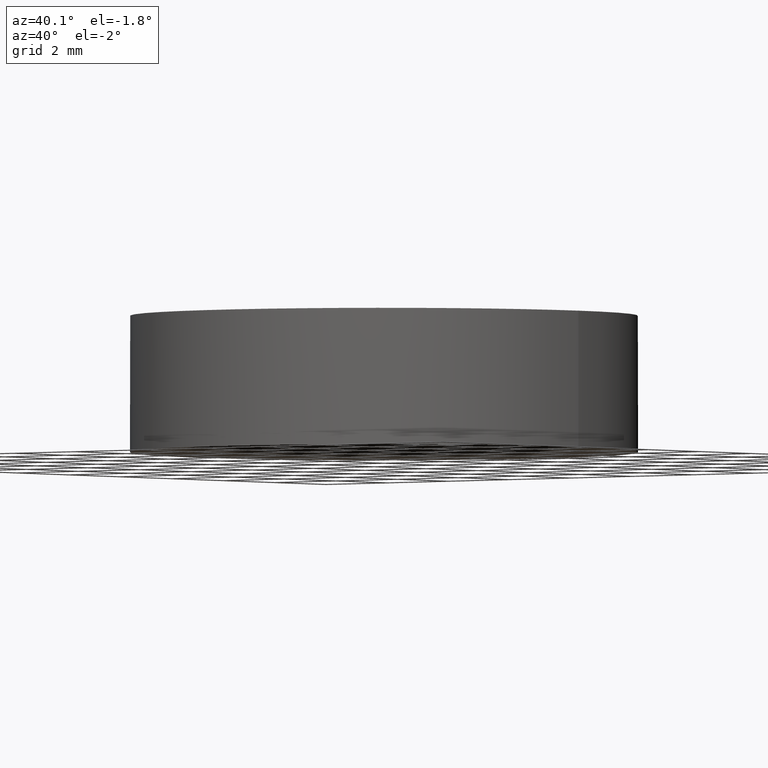
[diagram: clean part render]
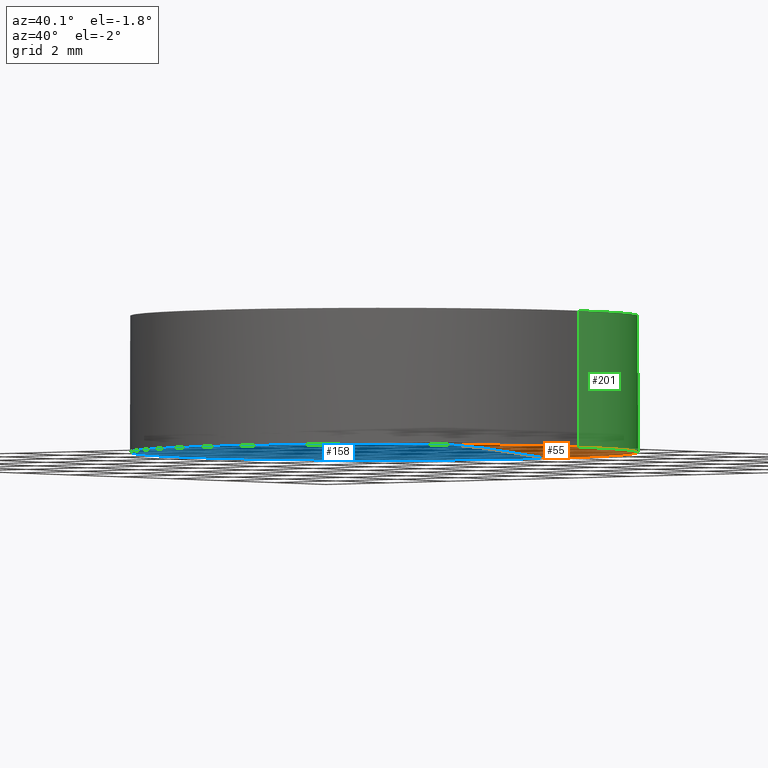
[diagram: same view with three faces highlighted in distinct colors, each labeled with its STEP entity id]
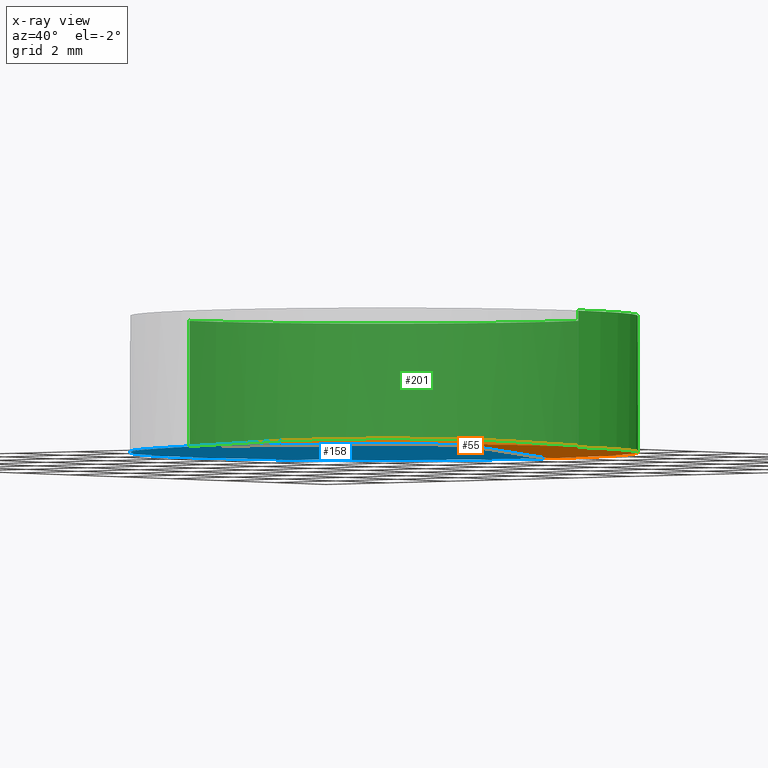
[diagram: x-ray of the same camera — body ghosted, the three highlighted faces saturated]
A machine part, auxiliary view with three faces highlighted in distinct colors.
The next image is the same camera in x-ray (body ghosted, the three faces saturated) — at least one of them is partly hidden behind the body in this view.
Their STEP definitions:

[orange] entity #55 — the highlighted face is a freeform B-spline surface patch.
#6 = CARTESIAN_POINT ( 'NONE',  ( 2.498001805406600200E-016, 1.221245327087670000E-015, -0.3116876092362069800 ) ) ;
#7 = DIRECTION ( 'NONE',  ( 0.0000000000000000000, 0.0000000000000000000, 1.000000000000000000 ) ) ;
#8 = CARTESIAN_POINT ( 'NONE',  ( 0.0000000000000000000, 0.0000000000000000000, -64.84000000000000300 ) ) ;
#16 = CARTESIAN_POINT ( 'NONE',  ( -1.391880571784052100E-014, 6.349999999999981000, -0.3116876092362075300 ) ) ;
#19 = DIRECTION ( 'NONE',  ( 1.000000000000000000, 0.0000000000000000000, 0.0000000000000000000 ) ) ;
#20 = CARTESIAN_POINT ( 'NONE',  ( 6.349999999999999600, 1.221245327087670000E-015, -0.3116876092362069800 ) ) ;
#23 = CARTESIAN_POINT ( 'NONE',  ( -1.105452618250814200E-014, -6.425951033630023600, -0.3192068142882365000 ) ) ;
#24 = DIRECTION ( 'NONE',  ( 1.000000000000000000, 0.0000000000000000000, 0.0000000000000000000 ) ) ;
#25 = DIRECTION ( 'NONE',  ( 1.000000000000000000, 2.240790868895130200E-016, 1.936499352473490000E-016 ) ) ;
#26 = CARTESIAN_POINT ( 'NONE',  ( 4.271726891306651700, -2.149036805498218100, 0.001348661855880839600 ) ) ;
#36 = EDGE_CURVE ( 'NONE', #98, #202, #53, .T. ) ;
#41 = CARTESIAN_POINT ( 'NONE',  ( 6.398493793489575600, 2.149036805498215900, -0.2092027377904508200 ) ) ;
#42 = CARTESIAN_POINT ( 'NONE',  ( -1.305848864697712000E-014, 2.149036805498214100, 0.1067526330159033200 ) ) ;
#47 = EDGE_LOOP ( 'NONE', ( #57, #153, #147 ) ) ;
#53 = CIRCLE ( 'NONE', #81, 6.349999999999999600 ) ;
#54 = CARTESIAN_POINT ( 'NONE',  ( 2.123147063980211200, 6.425951033630018300, -0.3192068142882361100 ) ) ;
#55 = ADVANCED_FACE ( 'NONE', ( #101 ), #195, .F. ) ;
#57 = ORIENTED_EDGE ( 'NONE', *, *, #154, .F. ) ;
#58 = CARTESIAN_POINT ( 'NONE',  ( 4.243710364661558800, -6.425951033630021800, -0.4239194834896737300 ) ) ;
#71 = CARTESIAN_POINT ( 'NONE',  ( -1.393436866253321800E-014, 6.425951033630018300, -0.3192068142882365000 ) ) ;
#81 = AXIS2_PLACEMENT_3D ( 'NONE', #6, #87, #19 ) ;
#87 = DIRECTION ( 'NONE',  ( 0.0000000000000000000, 0.0000000000000000000, 1.000000000000000000 ) ) ;
#90 = CARTESIAN_POINT ( 'NONE',  ( 2.123147063980214400, -6.425951033630021800, -0.3192068142882361100 ) ) ;
#93 = CIRCLE ( 'NONE', #143, 64.84000000000000300 ) ;
#98 = VERTEX_POINT ( 'NONE', #20 ) ;
#101 = FACE_OUTER_BOUND ( 'NONE', #47, .T. ) ;
#110 = CARTESIAN_POINT ( 'NONE',  ( 4.243710364661555300, 6.425951033630018300, -0.4239194834896737300 ) ) ;
#124 = CARTESIAN_POINT ( 'NONE',  ( 6.356528664066487100, 6.425951033630020100, -0.6330899617783315400 ) ) ;
#143 = AXIS2_PLACEMENT_3D ( 'NONE', #8, #25, #187 ) ;
#145 = CARTESIAN_POINT ( 'NONE',  ( 6.398493793489576500, -2.149036805498217600, -0.2092027377904504500 ) ) ;
#147 = ORIENTED_EDGE ( 'NONE', *, *, #157, .F. ) ;
#153 = ORIENTED_EDGE ( 'NONE', *, *, #36, .F. ) ;
#154 = EDGE_CURVE ( 'NONE', #202, #182, #93, .T. ) ;
#157 = EDGE_CURVE ( 'NONE', #182, #98, #222, .T. ) ;
#160 = CARTESIAN_POINT ( 'NONE',  ( 2.498001805406600200E-016, 1.221245327087670000E-015, -0.3116876092362069800 ) ) ;
#165 = CARTESIAN_POINT ( 'NONE',  ( -1.209538023684112500E-014, -2.149036805498219400, 0.1067526330159036900 ) ) ;
#166 = CARTESIAN_POINT ( 'NONE',  ( 2.137163856168667700, 2.149036805498215400, 0.1067526330159037200 ) ) ;
#167 = AXIS2_PLACEMENT_3D ( 'NONE', #160, #7, #24 ) ;
#182 = VERTEX_POINT ( 'NONE', #214 ) ;
#184 = CARTESIAN_POINT ( 'NONE',  ( 4.271726891306650800, 2.149036805498215400, 0.001348661855880487500 ) ) ;
#187 = DIRECTION ( 'NONE',  ( -2.240790868895131200E-016, 1.000000000000000000, 4.280625480510319500E-016 ) ) ;
#195 =( BOUNDED_SURFACE ( )  B_SPLINE_SURFACE ( 3, 3, ( 
 ( #71, #54, #110, #124 ),
 ( #42, #166, #184, #41 ),
 ( #165, #206, #26, #145 ),
 ( #23, #90, #58, #209 ) ),
 .UNSPECIFIED., .F., .F., .F. ) 
 B_SPLINE_SURFACE_WITH_KNOTS ( ( 4, 4 ),
 ( 4, 4 ),
 ( 0.0000000000000000000, 1.000000000000000000 ),
 ( 0.0000000000000000000, 1.000000000000000000 ),
 .UNSPECIFIED. ) 
 GEOMETRIC_REPRESENTATION_ITEM ( )  RATIONAL_B_SPLINE_SURFACE ( (
 ( 1.000000000000000000, 0.9991887001634776100, 0.9991887001634776100, 1.000000000000000000),
 ( 0.9967180051995863100, 0.9959093680449089300, 0.9959093680449089300, 0.9967180051995863100),
 ( 0.9967180051995863100, 0.9959093680449089300, 0.9959093680449089300, 0.9967180051995863100),
 ( 1.000000000000000000, 0.9991887001634776100, 0.9991887001634776100, 1.000000000000000000) ) ) 
 REPRESENTATION_ITEM ( '' )  SURFACE ( )  );
#202 = VERTEX_POINT ( 'NONE', #16 ) ;
#206 = CARTESIAN_POINT ( 'NONE',  ( 2.137163856168668600, -2.149036805498218500, 0.1067526330159041200 ) ) ;
#209 = CARTESIAN_POINT ( 'NONE',  ( 6.356528664066490600, -6.425951033630021800, -0.6330899617783315400 ) ) ;
#214 = CARTESIAN_POINT ( 'NONE',  ( -1.107300131434371700E-014, -6.349999999999981000, -0.3116876092362075300 ) ) ;
#222 = CIRCLE ( 'NONE', #167, 6.349999999999999600 ) ;

[blue] entity #158 — the highlighted face is a freeform B-spline surface patch.
#8 = CARTESIAN_POINT ( 'NONE',  ( 0.0000000000000000000, 0.0000000000000000000, -64.84000000000000300 ) ) ;
#9 = CARTESIAN_POINT ( 'NONE',  ( -6.356528664066489800, 6.425951033630017400, -0.6330899617783269900 ) ) ;
#16 = CARTESIAN_POINT ( 'NONE',  ( -1.391880571784052100E-014, 6.349999999999981000, -0.3116876092362075300 ) ) ;
#22 = CARTESIAN_POINT ( 'NONE',  ( -4.271726891306665100, -2.149036805498219400, 0.001348661855884010900 ) ) ;
#25 = DIRECTION ( 'NONE',  ( 1.000000000000000000, 2.240790868895130200E-016, 1.936499352473490000E-016 ) ) ;
#34 = ORIENTED_EDGE ( 'NONE', *, *, #199, .F. ) ;
#37 = FACE_OUTER_BOUND ( 'NONE', #123, .T. ) ;
#46 = CARTESIAN_POINT ( 'NONE',  ( -2.123147063980236600, -6.425951033630022700, -0.3192068142882328300 ) ) ;
#51 = VERTEX_POINT ( 'NONE', #86 ) ;
#56 = CARTESIAN_POINT ( 'NONE',  ( -2.862293735361731700E-014, 6.425951033630019200, -0.3192068142882318300 ) ) ;
#61 = CIRCLE ( 'NONE', #217, 6.349999999999999600 ) ;
#72 = CARTESIAN_POINT ( 'NONE',  ( -4.271726891306666800, 2.149036805498214500, 0.001348661855883685700 ) ) ;
#73 = CARTESIAN_POINT ( 'NONE',  ( -2.137163856168693400, -2.149036805498219000, 0.1067526330159074700 ) ) ;
#76 = DIRECTION ( 'NONE',  ( 0.0000000000000000000, 0.0000000000000000000, 1.000000000000000000 ) ) ;
#86 = CARTESIAN_POINT ( 'NONE',  ( -6.349999999999999600, 1.998896044546239400E-015, -0.3116876092362069800 ) ) ;
#91 = CARTESIAN_POINT ( 'NONE',  ( -2.137163856168694800, 2.149036805498215000, 0.1067526330159072200 ) ) ;
#92 = EDGE_CURVE ( 'NONE', #202, #51, #178, .T. ) ;
#93 = CIRCLE ( 'NONE', #143, 64.84000000000000300 ) ;
#99 = CARTESIAN_POINT ( 'NONE',  ( -6.356528664066486200, -6.425951033630024500, -0.6330899617783269900 ) ) ;
#103 =( BOUNDED_SURFACE ( )  B_SPLINE_SURFACE ( 3, 3, ( 
 ( #9, #146, #207, #56 ),
 ( #185, #72, #91, #163 ),
 ( #205, #22, #73, #226 ),
 ( #99, #231, #46, #133 ) ),
 .UNSPECIFIED., .F., .F., .F. ) 
 B_SPLINE_SURFACE_WITH_KNOTS ( ( 4, 4 ),
 ( 4, 4 ),
 ( 0.0000000000000000000, 1.000000000000000000 ),
 ( 0.0000000000000000000, 1.000000000000000000 ),
 .UNSPECIFIED. ) 
 GEOMETRIC_REPRESENTATION_ITEM ( )  RATIONAL_B_SPLINE_SURFACE ( (
 ( 1.000000000000000000, 0.9991887001634776100, 0.9991887001634776100, 1.000000000000000000),
 ( 0.9967180051995863100, 0.9959093680449089300, 0.9959093680449089300, 0.9967180051995863100),
 ( 0.9967180051995863100, 0.9959093680449089300, 0.9959093680449089300, 0.9967180051995863100),
 ( 1.000000000000000000, 0.9991887001634776100, 0.9991887001634776100, 1.000000000000000000) ) ) 
 REPRESENTATION_ITEM ( '' )  SURFACE ( )  );
#106 = ORIENTED_EDGE ( 'NONE', *, *, #92, .F. ) ;
#123 = EDGE_LOOP ( 'NONE', ( #106, #137, #34 ) ) ;
#127 = CARTESIAN_POINT ( 'NONE',  ( 2.498001805406600200E-016, 1.221245327087670000E-015, -0.3116876092362069800 ) ) ;
#128 = DIRECTION ( 'NONE',  ( 1.000000000000000000, 0.0000000000000000000, 0.0000000000000000000 ) ) ;
#133 = CARTESIAN_POINT ( 'NONE',  ( -2.515349040166370300E-014, -6.425951033630022700, -0.3192068142882319400 ) ) ;
#137 = ORIENTED_EDGE ( 'NONE', *, *, #154, .T. ) ;
#138 = DIRECTION ( 'NONE',  ( 0.0000000000000000000, 0.0000000000000000000, 1.000000000000000000 ) ) ;
#143 = AXIS2_PLACEMENT_3D ( 'NONE', #8, #25, #187 ) ;
#146 = CARTESIAN_POINT ( 'NONE',  ( -4.243710364661572100, 6.425951033630016500, -0.4239194834896705100 ) ) ;
#149 = DIRECTION ( 'NONE',  ( 1.000000000000000000, 0.0000000000000000000, 0.0000000000000000000 ) ) ;
#154 = EDGE_CURVE ( 'NONE', #202, #182, #93, .T. ) ;
#158 = ADVANCED_FACE ( 'NONE', ( #37 ), #103, .F. ) ;
#163 = CARTESIAN_POINT ( 'NONE',  ( -2.862293735361731700E-014, 2.149036805498214500, 0.1067526330159081400 ) ) ;
#171 = CARTESIAN_POINT ( 'NONE',  ( 2.498001805406600200E-016, 1.221245327087670000E-015, -0.3116876092362069800 ) ) ;
#173 = AXIS2_PLACEMENT_3D ( 'NONE', #127, #76, #128 ) ;
#178 = CIRCLE ( 'NONE', #173, 6.349999999999999600 ) ;
#182 = VERTEX_POINT ( 'NONE', #214 ) ;
#185 = CARTESIAN_POINT ( 'NONE',  ( -6.398493793489576500, 2.149036805498213200, -0.2092027377904462100 ) ) ;
#187 = DIRECTION ( 'NONE',  ( -2.240790868895131200E-016, 1.000000000000000000, 4.280625480510319500E-016 ) ) ;
#199 = EDGE_CURVE ( 'NONE', #51, #182, #61, .T. ) ;
#202 = VERTEX_POINT ( 'NONE', #16 ) ;
#205 = CARTESIAN_POINT ( 'NONE',  ( -6.398493793489574700, -2.149036805498220300, -0.2092027377904459000 ) ) ;
#207 = CARTESIAN_POINT ( 'NONE',  ( -2.123147063980239700, 6.425951033630017400, -0.3192068142882327800 ) ) ;
#214 = CARTESIAN_POINT ( 'NONE',  ( -1.107300131434371700E-014, -6.349999999999981000, -0.3116876092362075300 ) ) ;
#217 = AXIS2_PLACEMENT_3D ( 'NONE', #171, #138, #149 ) ;
#226 = CARTESIAN_POINT ( 'NONE',  ( -2.688821387764051000E-014, -2.149036805498219000, 0.1067526330159083600 ) ) ;
#231 = CARTESIAN_POINT ( 'NONE',  ( -4.243710364661568600, -6.425951033630023600, -0.4239194834896705100 ) ) ;

[green] entity #201 — the highlighted cylindrical surface (partial cylindrical patch) has radius 6.35 mm, axis along (0, 0, 1).
#6 = CARTESIAN_POINT ( 'NONE',  ( 2.498001805406600200E-016, 1.221245327087670000E-015, -0.3116876092362069800 ) ) ;
#10 = CARTESIAN_POINT ( 'NONE',  ( 2.498001805406600200E-016, 1.221245327087670000E-015, 3.100000000000000500 ) ) ;
#11 = CIRCLE ( 'NONE', #129, 6.349999999999999600 ) ;
#14 = ORIENTED_EDGE ( 'NONE', *, *, #92, .T. ) ;
#16 = CARTESIAN_POINT ( 'NONE',  ( -1.391880571784052100E-014, 6.349999999999981000, -0.3116876092362075300 ) ) ;
#19 = DIRECTION ( 'NONE',  ( 1.000000000000000000, 0.0000000000000000000, 0.0000000000000000000 ) ) ;
#20 = CARTESIAN_POINT ( 'NONE',  ( 6.349999999999999600, 1.221245327087670000E-015, -0.3116876092362069800 ) ) ;
#21 = LINE ( 'NONE', #224, #140 ) ;
#28 = DIRECTION ( 'NONE',  ( 0.0000000000000000000, 0.0000000000000000000, 1.000000000000000000 ) ) ;
#36 = EDGE_CURVE ( 'NONE', #98, #202, #53, .T. ) ;
#43 = CARTESIAN_POINT ( 'NONE',  ( 2.498001805406600200E-016, 1.221245327087670000E-015, -0.3116876092362069800 ) ) ;
#44 = DIRECTION ( 'NONE',  ( 1.000000000000000000, 0.0000000000000000000, 0.0000000000000000000 ) ) ;
#51 = VERTEX_POINT ( 'NONE', #86 ) ;
#53 = CIRCLE ( 'NONE', #81, 6.349999999999999600 ) ;
#59 = ORIENTED_EDGE ( 'NONE', *, *, #120, .T. ) ;
#69 = LINE ( 'NONE', #83, #164 ) ;
#74 = CARTESIAN_POINT ( 'NONE',  ( -6.349999999999999600, 1.998896044546239400E-015, 3.100000000000000500 ) ) ;
#76 = DIRECTION ( 'NONE',  ( 0.0000000000000000000, 0.0000000000000000000, 1.000000000000000000 ) ) ;
#80 = EDGE_LOOP ( 'NONE', ( #204, #14, #234, #59, #192 ) ) ;
#81 = AXIS2_PLACEMENT_3D ( 'NONE', #6, #87, #19 ) ;
#83 = CARTESIAN_POINT ( 'NONE',  ( -6.349999999999999600, 1.998896044546239400E-015, -0.3116876092362069800 ) ) ;
#85 = VERTEX_POINT ( 'NONE', #74 ) ;
#86 = CARTESIAN_POINT ( 'NONE',  ( -6.349999999999999600, 1.998896044546239400E-015, -0.3116876092362069800 ) ) ;
#87 = DIRECTION ( 'NONE',  ( 0.0000000000000000000, 0.0000000000000000000, 1.000000000000000000 ) ) ;
#92 = EDGE_CURVE ( 'NONE', #202, #51, #178, .T. ) ;
#98 = VERTEX_POINT ( 'NONE', #20 ) ;
#100 = EDGE_CURVE ( 'NONE', #98, #155, #21, .T. ) ;
#112 = DIRECTION ( 'NONE',  ( -0.0000000000000000000, -0.0000000000000000000, -1.000000000000000000 ) ) ;
#115 = FACE_OUTER_BOUND ( 'NONE', #80, .T. ) ;
#118 = DIRECTION ( 'NONE',  ( 0.0000000000000000000, 0.0000000000000000000, 1.000000000000000000 ) ) ;
#120 = EDGE_CURVE ( 'NONE', #85, #155, #11, .T. ) ;
#127 = CARTESIAN_POINT ( 'NONE',  ( 2.498001805406600200E-016, 1.221245327087670000E-015, -0.3116876092362069800 ) ) ;
#128 = DIRECTION ( 'NONE',  ( 1.000000000000000000, 0.0000000000000000000, 0.0000000000000000000 ) ) ;
#129 = AXIS2_PLACEMENT_3D ( 'NONE', #10, #112, #227 ) ;
#140 = VECTOR ( 'NONE', #181, 1000.000000000000000 ) ;
#155 = VERTEX_POINT ( 'NONE', #161 ) ;
#161 = CARTESIAN_POINT ( 'NONE',  ( 6.349999999999999600, 1.221245327087670000E-015, 3.100000000000000500 ) ) ;
#164 = VECTOR ( 'NONE', #118, 1000.000000000000000 ) ;
#173 = AXIS2_PLACEMENT_3D ( 'NONE', #127, #76, #128 ) ;
#175 = AXIS2_PLACEMENT_3D ( 'NONE', #43, #28, #44 ) ;
#178 = CIRCLE ( 'NONE', #173, 6.349999999999999600 ) ;
#181 = DIRECTION ( 'NONE',  ( 0.0000000000000000000, 0.0000000000000000000, 1.000000000000000000 ) ) ;
#192 = ORIENTED_EDGE ( 'NONE', *, *, #100, .F. ) ;
#201 = ADVANCED_FACE ( 'NONE', ( #115 ), #225, .T. ) ;
#202 = VERTEX_POINT ( 'NONE', #16 ) ;
#204 = ORIENTED_EDGE ( 'NONE', *, *, #36, .T. ) ;
#215 = EDGE_CURVE ( 'NONE', #51, #85, #69, .T. ) ;
#224 = CARTESIAN_POINT ( 'NONE',  ( 6.349999999999999600, 1.221245327087670000E-015, -0.3116876092362069800 ) ) ;
#225 = CYLINDRICAL_SURFACE ( 'NONE', #175, 6.349999999999999600 ) ;
#227 = DIRECTION ( 'NONE',  ( 1.000000000000000000, 0.0000000000000000000, 0.0000000000000000000 ) ) ;
#234 = ORIENTED_EDGE ( 'NONE', *, *, #215, .T. ) ;